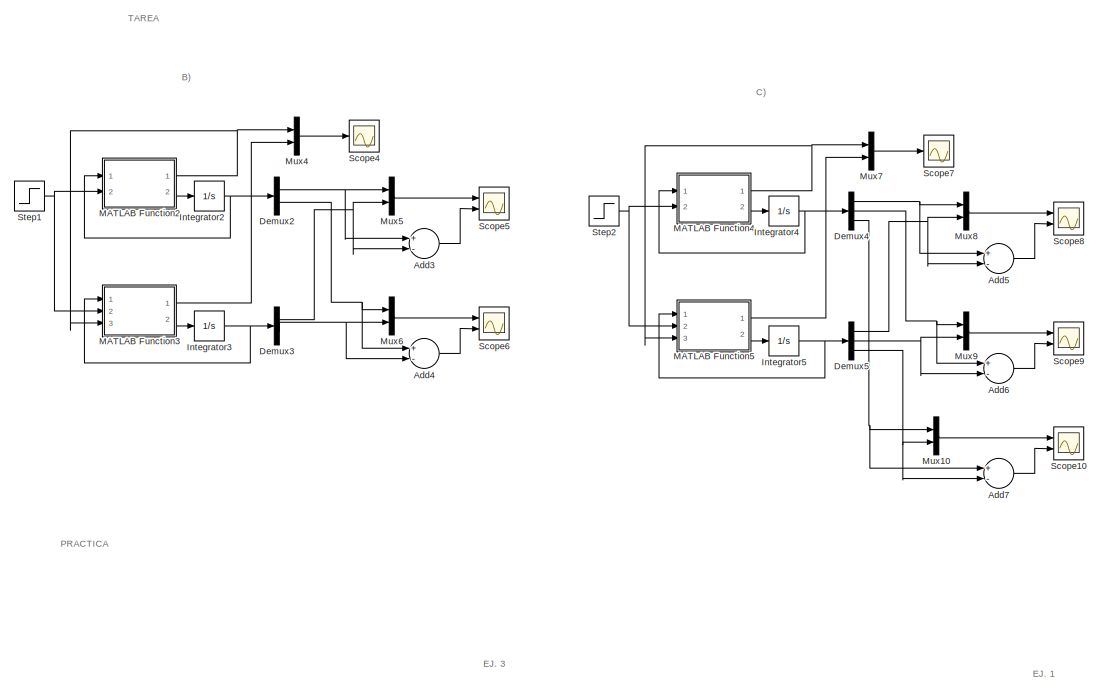
[diagram: root canvas - part 1/4, top center region]
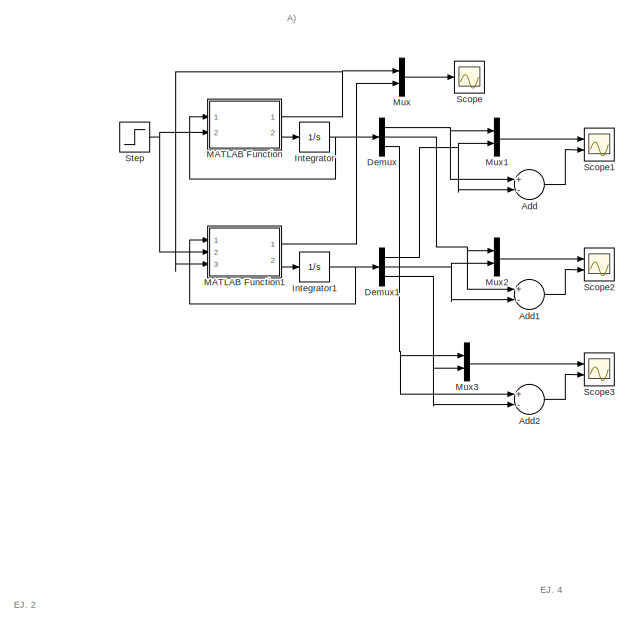
[diagram: root canvas - part 2/4, top left region]
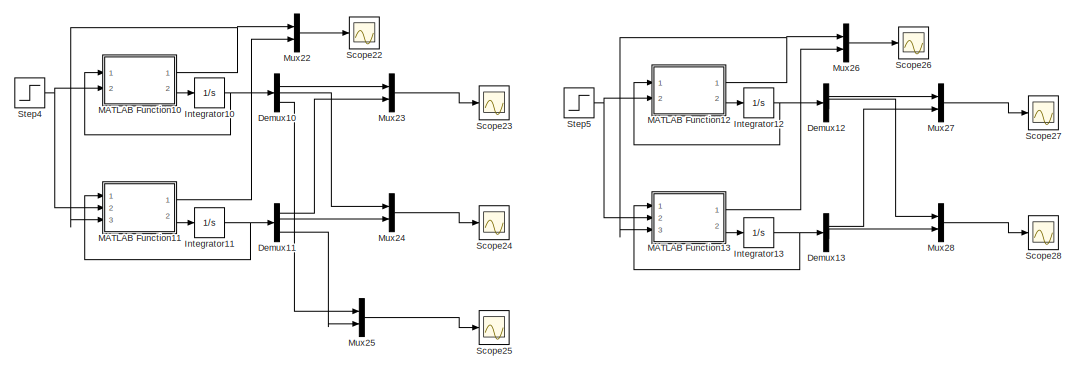
[diagram: root canvas - part 3/4, bottom right region]
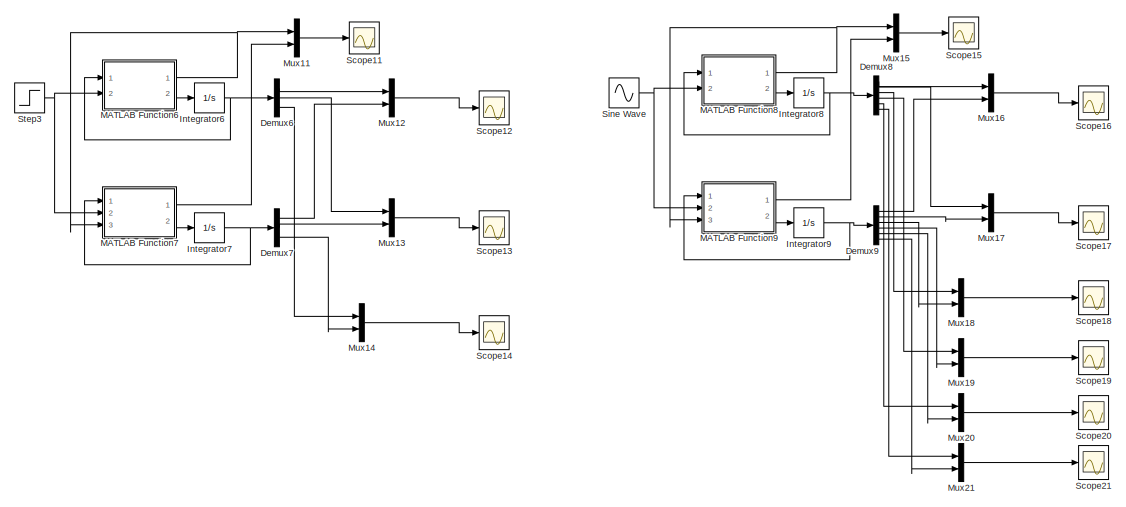
[diagram: root canvas - part 4/4, bottom left region]
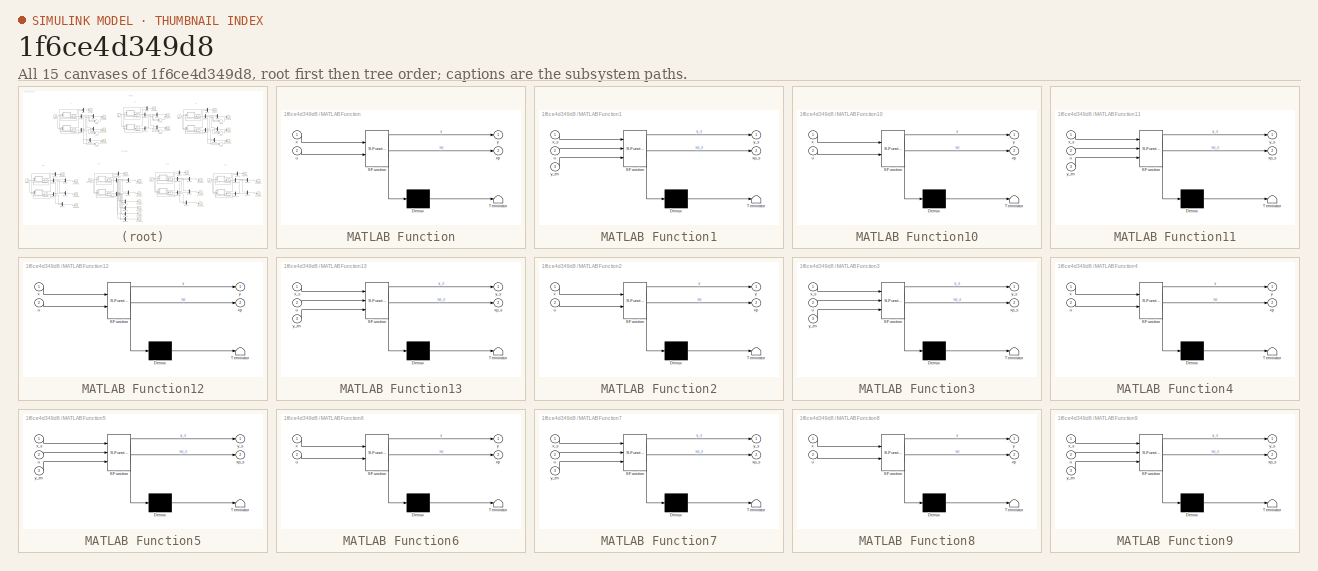
[diagram: thumbnail index - all 15 canvases of the model, root first then tree order]
MODEL slx_1f6ce4d349d8
KIND model
CONFIG AbsTol = auto
CONFIG FixedStep = auto
CONFIG MaxStep = auto
CONFIG MinStep = auto
CONFIG RelTol = 1e-3
CONFIG SampleTimeConstraint = Unconstrained
CONFIG Solver = ode45
CONFIG SolverMode = Auto
CONFIG SolverName = ode45
CONFIG StartTime = 0.0
CONFIG StopTime = 3
BLOCK [Sum] Add
  InputSameDT = off
  Inputs = +-
  OutDataTypeStr = Inherit: Inherit via internal rule
  Ports = [2, 1]
  SaturateOnIntegerOverflow = off
BLOCK [Sum] Add1
  InputSameDT = off
  Inputs = +-
  OutDataTypeStr = Inherit: Inherit via internal rule
  Ports = [2, 1]
  SaturateOnIntegerOverflow = off
BLOCK [Sum] Add2
  InputSameDT = off
  Inputs = +-
  OutDataTypeStr = Inherit: Inherit via internal rule
  Ports = [2, 1]
  SaturateOnIntegerOverflow = off
BLOCK [Sum] Add3
  InputSameDT = off
  Inputs = +-
  OutDataTypeStr = Inherit: Inherit via internal rule
  Ports = [2, 1]
  SaturateOnIntegerOverflow = off
BLOCK [Sum] Add4
  InputSameDT = off
  Inputs = +-
  OutDataTypeStr = Inherit: Inherit via internal rule
  Ports = [2, 1]
  SaturateOnIntegerOverflow = off
BLOCK [Sum] Add5
  InputSameDT = off
  Inputs = +-
  OutDataTypeStr = Inherit: Inherit via internal rule
  Ports = [2, 1]
  SaturateOnIntegerOverflow = off
BLOCK [Sum] Add6
  InputSameDT = off
  Inputs = +-
  OutDataTypeStr = Inherit: Inherit via internal rule
  Ports = [2, 1]
  SaturateOnIntegerOverflow = off
BLOCK [Sum] Add7
  InputSameDT = off
  Inputs = +-
  OutDataTypeStr = Inherit: Inherit via internal rule
  Ports = [2, 1]
  SaturateOnIntegerOverflow = off
BLOCK [Demux] Demux
  DisplayOption = bar
  Outputs = 3
  Ports = [1, 3]
BLOCK [Demux] Demux1
  DisplayOption = bar
  Outputs = 3
  Ports = [1, 3]
BLOCK [Demux] Demux10
  DisplayOption = bar
  Outputs = 3
  Ports = [1, 3]
BLOCK [Demux] Demux11
  DisplayOption = bar
  Outputs = 3
  Ports = [1, 3]
BLOCK [Demux] Demux12
  DisplayOption = bar
  Outputs = 2
  Ports = [1, 2]
BLOCK [Demux] Demux13
  DisplayOption = bar
  Outputs = 2
  Ports = [1, 2]
BLOCK [Demux] Demux2
  DisplayOption = bar
  Outputs = 2
  Ports = [1, 2]
BLOCK [Demux] Demux3
  DisplayOption = bar
  Outputs = 2
  Ports = [1, 2]
BLOCK [Demux] Demux4
  DisplayOption = bar
  Outputs = 3
  Ports = [1, 3]
BLOCK [Demux] Demux5
  DisplayOption = bar
  Outputs = 3
  Ports = [1, 3]
BLOCK [Demux] Demux6
  DisplayOption = bar
  Outputs = 3
  Ports = [1, 3]
BLOCK [Demux] Demux7
  DisplayOption = bar
  Outputs = 3
  Ports = [1, 3]
BLOCK [Demux] Demux8
  DisplayOption = bar
  Outputs = 6
  Ports = [1, 6]
BLOCK [Demux] Demux9
  DisplayOption = bar
  Outputs = 6
  Ports = [1, 6]
BLOCK [Integrator] Integrator
  InitialCondition = [3 2 5]
  Ports = [1, 1]
BLOCK [Integrator] Integrator1
  InitialCondition = [0 0 0]
  Ports = [1, 1]
BLOCK [Integrator] Integrator10
  InitialCondition = [3 2 5]
  Ports = [1, 1]
BLOCK [Integrator] Integrator11
  InitialCondition = [0 0 0]
  Ports = [1, 1]
BLOCK [Integrator] Integrator12
  InitialCondition = [3 5]
  Ports = [1, 1]
BLOCK [Integrator] Integrator13
  InitialCondition = [0 0]
  Ports = [1, 1]
BLOCK [Integrator] Integrator2
  InitialCondition = [4 5]
  Ports = [1, 1]
BLOCK [Integrator] Integrator3
  InitialCondition = [0 0]
  Ports = [1, 1]
BLOCK [Integrator] Integrator4
  InitialCondition = [10 6 20]
  Ports = [1, 1]
BLOCK [Integrator] Integrator5
  InitialCondition = [0 0 0]
  Ports = [1, 1]
BLOCK [Integrator] Integrator6
  InitialCondition = [3 2 5]
  Ports = [1, 1]
BLOCK [Integrator] Integrator7
  InitialCondition = [0 0 0]
  Ports = [1, 1]
BLOCK [Integrator] Integrator8
  InitialCondition = [3 2 5 1 2 3]
  Ports = [1, 1]
BLOCK [Integrator] Integrator9
  InitialCondition = [0 0 0 0 0 0]
  Ports = [1, 1]
BLOCK [SubSystem] MATLAB Function
  ErrorFcn = Stateflow.Translate.translate
  PermitHierarchicalResolution = ExplicitOnly
  Ports = [2, 2]
  RequestExecContextInheritance = off
  SFBlockType = MATLAB Function
  TreatAsAtomicUnit = on
BLOCK [Demux] MATLAB Function/ Demux 
  Outputs = 1
  Ports = [1, 1]
BLOCK [S-Function] MATLAB Function/ SFunction 
  EnableBusSupport = on
  FunctionName = sf_sfun
  PortCounts = [2 3]
  Ports = [2, 3]
  Tag = Stateflow S-Function simulacion 2
BLOCK [Terminator] MATLAB Function/ Terminator 
BLOCK [Inport] MATLAB Function/u
  IconDisplay = Port number
  Port = 2
BLOCK [Inport] MATLAB Function/x
  IconDisplay = Port number
BLOCK [Outport] MATLAB Function/xp
  IconDisplay = Port number
  Port = 2
BLOCK [Outport] MATLAB Function/y
  IconDisplay = Port number
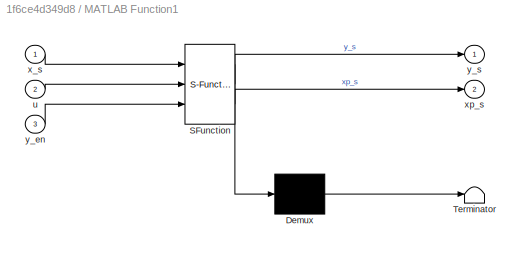
BLOCK [SubSystem] MATLAB Function1
  ErrorFcn = Stateflow.Translate.translate
  PermitHierarchicalResolution = ExplicitOnly
  Ports = [3, 2]
  RequestExecContextInheritance = off
  SFBlockType = MATLAB Function
  TreatAsAtomicUnit = on
BLOCK [Demux] MATLAB Function1/ Demux 
  Outputs = 1
  Ports = [1, 1]
BLOCK [S-Function] MATLAB Function1/ SFunction 
  EnableBusSupport = on
  FunctionName = sf_sfun
  PortCounts = [3 3]
  Ports = [3, 3]
  Tag = Stateflow S-Function simulacion 1
BLOCK [Terminator] MATLAB Function1/ Terminator 
BLOCK [Inport] MATLAB Function1/u
  IconDisplay = Port number
  Port = 2
BLOCK [Inport] MATLAB Function1/x_s
  IconDisplay = Port number
BLOCK [Outport] MATLAB Function1/xp_s
  IconDisplay = Port number
  Port = 2
BLOCK [Inport] MATLAB Function1/y_en
  IconDisplay = Port number
  Port = 3
BLOCK [Outport] MATLAB Function1/y_s
  IconDisplay = Port number
BLOCK [SubSystem] MATLAB Function10
  ErrorFcn = Stateflow.Translate.translate
  PermitHierarchicalResolution = ExplicitOnly
  Ports = [2, 2]
  RequestExecContextInheritance = off
  SFBlockType = MATLAB Function
  TreatAsAtomicUnit = on
BLOCK [Demux] MATLAB Function10/ Demux 
  Outputs = 1
  Ports = [1, 1]
BLOCK [S-Function] MATLAB Function10/ SFunction 
  EnableBusSupport = on
  FunctionName = sf_sfun
  PortCounts = [2 3]
  Ports = [2, 3]
  Tag = Stateflow S-Function simulacion 11
BLOCK [Terminator] MATLAB Function10/ Terminator 
BLOCK [Inport] MATLAB Function10/u
  IconDisplay = Port number
  Port = 2
BLOCK [Inport] MATLAB Function10/x
  IconDisplay = Port number
BLOCK [Outport] MATLAB Function10/xp
  IconDisplay = Port number
  Port = 2
BLOCK [Outport] MATLAB Function10/y
  IconDisplay = Port number
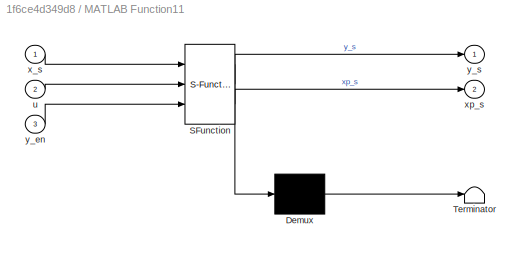
BLOCK [SubSystem] MATLAB Function11
  ErrorFcn = Stateflow.Translate.translate
  PermitHierarchicalResolution = ExplicitOnly
  Ports = [3, 2]
  RequestExecContextInheritance = off
  SFBlockType = MATLAB Function
  TreatAsAtomicUnit = on
BLOCK [Demux] MATLAB Function11/ Demux 
  Outputs = 1
  Ports = [1, 1]
BLOCK [S-Function] MATLAB Function11/ SFunction 
  EnableBusSupport = on
  FunctionName = sf_sfun
  PortCounts = [3 3]
  Ports = [3, 3]
  Tag = Stateflow S-Function simulacion 12
BLOCK [Terminator] MATLAB Function11/ Terminator 
BLOCK [Inport] MATLAB Function11/u
  IconDisplay = Port number
  Port = 2
BLOCK [Inport] MATLAB Function11/x_s
  IconDisplay = Port number
BLOCK [Outport] MATLAB Function11/xp_s
  IconDisplay = Port number
  Port = 2
BLOCK [Inport] MATLAB Function11/y_en
  IconDisplay = Port number
  Port = 3
BLOCK [Outport] MATLAB Function11/y_s
  IconDisplay = Port number
BLOCK [SubSystem] MATLAB Function12
  ErrorFcn = Stateflow.Translate.translate
  PermitHierarchicalResolution = ExplicitOnly
  Ports = [2, 2]
  RequestExecContextInheritance = off
  SFBlockType = MATLAB Function
  TreatAsAtomicUnit = on
BLOCK [Demux] MATLAB Function12/ Demux 
  Outputs = 1
  Ports = [1, 1]
BLOCK [S-Function] MATLAB Function12/ SFunction 
  EnableBusSupport = on
  FunctionName = sf_sfun
  PortCounts = [2 3]
  Ports = [2, 3]
  Tag = Stateflow S-Function simulacion 13
BLOCK [Terminator] MATLAB Function12/ Terminator 
BLOCK [Inport] MATLAB Function12/u
  IconDisplay = Port number
  Port = 2
BLOCK [Inport] MATLAB Function12/x
  IconDisplay = Port number
BLOCK [Outport] MATLAB Function12/xp
  IconDisplay = Port number
  Port = 2
BLOCK [Outport] MATLAB Function12/y
  IconDisplay = Port number
BLOCK [SubSystem] MATLAB Function13
  ErrorFcn = Stateflow.Translate.translate
  PermitHierarchicalResolution = ExplicitOnly
  Ports = [3, 2]
  RequestExecContextInheritance = off
  SFBlockType = MATLAB Function
  TreatAsAtomicUnit = on
BLOCK [Demux] MATLAB Function13/ Demux 
  Outputs = 1
  Ports = [1, 1]
BLOCK [S-Function] MATLAB Function13/ SFunction 
  EnableBusSupport = on
  FunctionName = sf_sfun
  PortCounts = [3 3]
  Ports = [3, 3]
  Tag = Stateflow S-Function simulacion 14
BLOCK [Terminator] MATLAB Function13/ Terminator 
BLOCK [Inport] MATLAB Function13/u
  IconDisplay = Port number
  Port = 2
BLOCK [Inport] MATLAB Function13/x_s
  IconDisplay = Port number
BLOCK [Outport] MATLAB Function13/xp_s
  IconDisplay = Port number
  Port = 2
BLOCK [Inport] MATLAB Function13/y_en
  IconDisplay = Port number
  Port = 3
BLOCK [Outport] MATLAB Function13/y_s
  IconDisplay = Port number
BLOCK [SubSystem] MATLAB Function2
  ErrorFcn = Stateflow.Translate.translate
  PermitHierarchicalResolution = ExplicitOnly
  Ports = [2, 2]
  RequestExecContextInheritance = off
  SFBlockType = MATLAB Function
  TreatAsAtomicUnit = on
BLOCK [Demux] MATLAB Function2/ Demux 
  Outputs = 1
  Ports = [1, 1]
BLOCK [S-Function] MATLAB Function2/ SFunction 
  EnableBusSupport = on
  FunctionName = sf_sfun
  PortCounts = [2 3]
  Ports = [2, 3]
  Tag = Stateflow S-Function simulacion 3
BLOCK [Terminator] MATLAB Function2/ Terminator 
BLOCK [Inport] MATLAB Function2/u
  IconDisplay = Port number
  Port = 2
BLOCK [Inport] MATLAB Function2/x
  IconDisplay = Port number
BLOCK [Outport] MATLAB Function2/xp
  IconDisplay = Port number
  Port = 2
BLOCK [Outport] MATLAB Function2/y
  IconDisplay = Port number
BLOCK [SubSystem] MATLAB Function3
  ErrorFcn = Stateflow.Translate.translate
  PermitHierarchicalResolution = ExplicitOnly
  Ports = [3, 2]
  RequestExecContextInheritance = off
  SFBlockType = MATLAB Function
  TreatAsAtomicUnit = on
BLOCK [Demux] MATLAB Function3/ Demux 
  Outputs = 1
  Ports = [1, 1]
BLOCK [S-Function] MATLAB Function3/ SFunction 
  EnableBusSupport = on
  FunctionName = sf_sfun
  PortCounts = [3 3]
  Ports = [3, 3]
  Tag = Stateflow S-Function simulacion 4
BLOCK [Terminator] MATLAB Function3/ Terminator 
BLOCK [Inport] MATLAB Function3/u
  IconDisplay = Port number
  Port = 2
BLOCK [Inport] MATLAB Function3/x_s
  IconDisplay = Port number
BLOCK [Outport] MATLAB Function3/xp_s
  IconDisplay = Port number
  Port = 2
BLOCK [Inport] MATLAB Function3/y_en
  IconDisplay = Port number
  Port = 3
BLOCK [Outport] MATLAB Function3/y_s
  IconDisplay = Port number
BLOCK [SubSystem] MATLAB Function4
  ErrorFcn = Stateflow.Translate.translate
  PermitHierarchicalResolution = ExplicitOnly
  Ports = [2, 2]
  RequestExecContextInheritance = off
  SFBlockType = MATLAB Function
  TreatAsAtomicUnit = on
BLOCK [Demux] MATLAB Function4/ Demux 
  Outputs = 1
  Ports = [1, 1]
BLOCK [S-Function] MATLAB Function4/ SFunction 
  EnableBusSupport = on
  FunctionName = sf_sfun
  PortCounts = [2 3]
  Ports = [2, 3]
  Tag = Stateflow S-Function simulacion 5
BLOCK [Terminator] MATLAB Function4/ Terminator 
BLOCK [Inport] MATLAB Function4/u
  IconDisplay = Port number
  Port = 2
BLOCK [Inport] MATLAB Function4/x
  IconDisplay = Port number
BLOCK [Outport] MATLAB Function4/xp
  IconDisplay = Port number
  Port = 2
BLOCK [Outport] MATLAB Function4/y
  IconDisplay = Port number
BLOCK [SubSystem] MATLAB Function5
  ErrorFcn = Stateflow.Translate.translate
  PermitHierarchicalResolution = ExplicitOnly
  Ports = [3, 2]
  RequestExecContextInheritance = off
  SFBlockType = MATLAB Function
  TreatAsAtomicUnit = on
BLOCK [Demux] MATLAB Function5/ Demux 
  Outputs = 1
  Ports = [1, 1]
BLOCK [S-Function] MATLAB Function5/ SFunction 
  EnableBusSupport = on
  FunctionName = sf_sfun
  PortCounts = [3 3]
  Ports = [3, 3]
  Tag = Stateflow S-Function simulacion 6
BLOCK [Terminator] MATLAB Function5/ Terminator 
BLOCK [Inport] MATLAB Function5/u
  IconDisplay = Port number
  Port = 2
BLOCK [Inport] MATLAB Function5/x_s
  IconDisplay = Port number
BLOCK [Outport] MATLAB Function5/xp_s
  IconDisplay = Port number
  Port = 2
BLOCK [Inport] MATLAB Function5/y_en
  IconDisplay = Port number
  Port = 3
BLOCK [Outport] MATLAB Function5/y_s
  IconDisplay = Port number
BLOCK [SubSystem] MATLAB Function6
  ErrorFcn = Stateflow.Translate.translate
  PermitHierarchicalResolution = ExplicitOnly
  Ports = [2, 2]
  RequestExecContextInheritance = off
  SFBlockType = MATLAB Function
  TreatAsAtomicUnit = on
BLOCK [Demux] MATLAB Function6/ Demux 
  Outputs = 1
  Ports = [1, 1]
BLOCK [S-Function] MATLAB Function6/ SFunction 
  EnableBusSupport = on
  FunctionName = sf_sfun
  PortCounts = [2 3]
  Ports = [2, 3]
  Tag = Stateflow S-Function simulacion 7
BLOCK [Terminator] MATLAB Function6/ Terminator 
BLOCK [Inport] MATLAB Function6/u
  IconDisplay = Port number
  Port = 2
BLOCK [Inport] MATLAB Function6/x
  IconDisplay = Port number
BLOCK [Outport] MATLAB Function6/xp
  IconDisplay = Port number
  Port = 2
BLOCK [Outport] MATLAB Function6/y
  IconDisplay = Port number
BLOCK [SubSystem] MATLAB Function7
  ErrorFcn = Stateflow.Translate.translate
  PermitHierarchicalResolution = ExplicitOnly
  Ports = [3, 2]
  RequestExecContextInheritance = off
  SFBlockType = MATLAB Function
  TreatAsAtomicUnit = on
BLOCK [Demux] MATLAB Function7/ Demux 
  Outputs = 1
  Ports = [1, 1]
BLOCK [S-Function] MATLAB Function7/ SFunction 
  EnableBusSupport = on
  FunctionName = sf_sfun
  PortCounts = [3 3]
  Ports = [3, 3]
  Tag = Stateflow S-Function simulacion 8
BLOCK [Terminator] MATLAB Function7/ Terminator 
BLOCK [Inport] MATLAB Function7/u
  IconDisplay = Port number
  Port = 2
BLOCK [Inport] MATLAB Function7/x_s
  IconDisplay = Port number
BLOCK [Outport] MATLAB Function7/xp_s
  IconDisplay = Port number
  Port = 2
BLOCK [Inport] MATLAB Function7/y_en
  IconDisplay = Port number
  Port = 3
BLOCK [Outport] MATLAB Function7/y_s
  IconDisplay = Port number
BLOCK [SubSystem] MATLAB Function8
  ErrorFcn = Stateflow.Translate.translate
  PermitHierarchicalResolution = ExplicitOnly
  Ports = [2, 2]
  RequestExecContextInheritance = off
  SFBlockType = MATLAB Function
  TreatAsAtomicUnit = on
BLOCK [Demux] MATLAB Function8/ Demux 
  Outputs = 1
  Ports = [1, 1]
BLOCK [S-Function] MATLAB Function8/ SFunction 
  EnableBusSupport = on
  FunctionName = sf_sfun
  PortCounts = [2 3]
  Ports = [2, 3]
  Tag = Stateflow S-Function simulacion 9
BLOCK [Terminator] MATLAB Function8/ Terminator 
BLOCK [Inport] MATLAB Function8/u
  IconDisplay = Port number
  Port = 2
BLOCK [Inport] MATLAB Function8/x
  IconDisplay = Port number
BLOCK [Outport] MATLAB Function8/xp
  IconDisplay = Port number
  Port = 2
BLOCK [Outport] MATLAB Function8/y
  IconDisplay = Port number
BLOCK [SubSystem] MATLAB Function9
  ErrorFcn = Stateflow.Translate.translate
  PermitHierarchicalResolution = ExplicitOnly
  Ports = [3, 2]
  RequestExecContextInheritance = off
  SFBlockType = MATLAB Function
  TreatAsAtomicUnit = on
BLOCK [Demux] MATLAB Function9/ Demux 
  Outputs = 1
  Ports = [1, 1]
BLOCK [S-Function] MATLAB Function9/ SFunction 
  EnableBusSupport = on
  FunctionName = sf_sfun
  PortCounts = [3 3]
  Ports = [3, 3]
  Tag = Stateflow S-Function simulacion 10
BLOCK [Terminator] MATLAB Function9/ Terminator 
BLOCK [Inport] MATLAB Function9/u
  IconDisplay = Port number
  Port = 2
BLOCK [Inport] MATLAB Function9/x_s
  IconDisplay = Port number
BLOCK [Outport] MATLAB Function9/xp_s
  IconDisplay = Port number
  Port = 2
BLOCK [Inport] MATLAB Function9/y_en
  IconDisplay = Port number
  Port = 3
BLOCK [Outport] MATLAB Function9/y_s
  IconDisplay = Port number
BLOCK [Mux] Mux
  DisplayOption = bar
  Inputs = 2
  Ports = [2, 1]
BLOCK [Mux] Mux1
  DisplayOption = bar
  Inputs = 2
  Ports = [2, 1]
BLOCK [Mux] Mux10
  DisplayOption = bar
  Inputs = 2
  Ports = [2, 1]
BLOCK [Mux] Mux11
  DisplayOption = bar
  Inputs = 2
  Ports = [2, 1]
BLOCK [Mux] Mux12
  DisplayOption = bar
  Inputs = 2
  Ports = [2, 1]
BLOCK [Mux] Mux13
  DisplayOption = bar
  Inputs = 2
  Ports = [2, 1]
BLOCK [Mux] Mux14
  DisplayOption = bar
  Inputs = 2
  Ports = [2, 1]
BLOCK [Mux] Mux15
  DisplayOption = bar
  Inputs = 2
  Ports = [2, 1]
BLOCK [Mux] Mux16
  DisplayOption = bar
  Inputs = 2
  Ports = [2, 1]
BLOCK [Mux] Mux17
  DisplayOption = bar
  Inputs = 2
  Ports = [2, 1]
BLOCK [Mux] Mux18
  DisplayOption = bar
  Inputs = 2
  Ports = [2, 1]
BLOCK [Mux] Mux19
  DisplayOption = bar
  Inputs = 2
  Ports = [2, 1]
BLOCK [Mux] Mux2
  DisplayOption = bar
  Inputs = 2
  Ports = [2, 1]
BLOCK [Mux] Mux20
  DisplayOption = bar
  Inputs = 2
  Ports = [2, 1]
BLOCK [Mux] Mux21
  DisplayOption = bar
  Inputs = 2
  Ports = [2, 1]
BLOCK [Mux] Mux22
  DisplayOption = bar
  Inputs = 2
  Ports = [2, 1]
BLOCK [Mux] Mux23
  DisplayOption = bar
  Inputs = 2
  Ports = [2, 1]
BLOCK [Mux] Mux24
  DisplayOption = bar
  Inputs = 2
  Ports = [2, 1]
BLOCK [Mux] Mux25
  DisplayOption = bar
  Inputs = 2
  Ports = [2, 1]
BLOCK [Mux] Mux26
  DisplayOption = bar
  Inputs = 2
  Ports = [2, 1]
BLOCK [Mux] Mux27
  DisplayOption = bar
  Inputs = 2
  Ports = [2, 1]
BLOCK [Mux] Mux28
  DisplayOption = bar
  Inputs = 2
  Ports = [2, 1]
BLOCK [Mux] Mux3
  DisplayOption = bar
  Inputs = 2
  Ports = [2, 1]
BLOCK [Mux] Mux4
  DisplayOption = bar
  Inputs = 2
  Ports = [2, 1]
BLOCK [Mux] Mux5
  DisplayOption = bar
  Inputs = 2
  Ports = [2, 1]
BLOCK [Mux] Mux6
  DisplayOption = bar
  Inputs = 2
  Ports = [2, 1]
BLOCK [Mux] Mux7
  DisplayOption = bar
  Inputs = 2
  Ports = [2, 1]
BLOCK [Mux] Mux8
  DisplayOption = bar
  Inputs = 2
  Ports = [2, 1]
BLOCK [Mux] Mux9
  DisplayOption = bar
  Inputs = 2
  Ports = [2, 1]
BLOCK [Scope] Scope
  Floating = off
  LimitDataPoints = off
  NumInputPorts = 1
  Ports = [1]
BLOCK [Scope] Scope1
  Floating = off
  LimitDataPoints = off
  NumInputPorts = 2
  Ports = [2]
  SaveName = ScopeData1
  YMax = 5~5
  YMin = -5~-5
BLOCK [Scope] Scope10
  Floating = off
  LimitDataPoints = off
  NumInputPorts = 2
  Ports = [2]
  SaveName = ScopeData7
  YMax = 5~5
  YMin = -5~-5
BLOCK [Scope] Scope11
  Floating = off
  LimitDataPoints = off
  NumInputPorts = 1
  Ports = [1]
  SaveName = ScopeData11
BLOCK [Scope] Scope12
  Floating = off
  LimitDataPoints = off
  NumInputPorts = 1
  Ports = [1]
  SaveName = ScopeData12
  ZoomMode = xonly
BLOCK [Scope] Scope13
  Floating = off
  LimitDataPoints = off
  NumInputPorts = 1
  Ports = [1]
  SaveName = ScopeData13
BLOCK [Scope] Scope14
  Floating = off
  LimitDataPoints = off
  NumInputPorts = 1
  Ports = [1]
  SaveName = ScopeData14
BLOCK [Scope] Scope15
  Floating = off
  LimitDataPoints = off
  NumInputPorts = 1
  Ports = [1]
  SaveName = ScopeData15
BLOCK [Scope] Scope16
  Floating = off
  LimitDataPoints = off
  NumInputPorts = 1
  Ports = [1]
  SaveName = ScopeData16
BLOCK [Scope] Scope17
  Floating = off
  LimitDataPoints = off
  NumInputPorts = 1
  Ports = [1]
  SaveName = ScopeData17
  YMax = 5e+06
  YMin = -500000
  ZoomMode = yonly
BLOCK [Scope] Scope18
  Floating = off
  LimitDataPoints = off
  NumInputPorts = 1
  Ports = [1]
  SaveName = ScopeData18
  YMax = 5000
  YMin = -5000
BLOCK [Scope] Scope19
  Floating = off
  LimitDataPoints = off
  NumInputPorts = 1
  Ports = [1]
  SaveName = ScopeData19
  YMax = 5000
  YMin = -5000
BLOCK [Scope] Scope2
  Floating = off
  LimitDataPoints = off
  NumInputPorts = 2
  Ports = [2]
  SaveName = ScopeData2
  YMax = 5~5
  YMin = -5~-5
BLOCK [Scope] Scope20
  Floating = off
  LimitDataPoints = off
  NumInputPorts = 1
  Ports = [1]
  SaveName = ScopeData20
  YMax = 5000
  YMin = -5000
BLOCK [Scope] Scope21
  Floating = off
  LimitDataPoints = off
  NumInputPorts = 1
  Ports = [1]
  SaveName = ScopeData21
  YMax = 5000
  YMin = -5000
BLOCK [Scope] Scope22
  Floating = off
  LimitDataPoints = off
  NumInputPorts = 1
  Ports = [1]
  SaveName = ScopeData22
BLOCK [Scope] Scope23
  Floating = off
  LimitDataPoints = off
  NumInputPorts = 1
  Ports = [1]
  SaveName = ScopeData23
  ZoomMode = xonly
BLOCK [Scope] Scope24
  Floating = off
  LimitDataPoints = off
  NumInputPorts = 1
  Ports = [1]
  SaveName = ScopeData24
BLOCK [Scope] Scope25
  Floating = off
  LimitDataPoints = off
  NumInputPorts = 1
  Ports = [1]
  SaveName = ScopeData25
BLOCK [Scope] Scope26
  Floating = off
  LimitDataPoints = off
  NumInputPorts = 1
  Ports = [1]
  SaveName = ScopeData26
BLOCK [Scope] Scope27
  Floating = off
  LimitDataPoints = off
  NumInputPorts = 1
  Ports = [1]
  SaveName = ScopeData27
BLOCK [Scope] Scope28
  Floating = off
  LimitDataPoints = off
  NumInputPorts = 1
  Ports = [1]
  SaveName = ScopeData28
BLOCK [Scope] Scope3
  Floating = off
  LimitDataPoints = off
  NumInputPorts = 2
  Ports = [2]
  SaveName = ScopeData3
  YMax = 5~5
  YMin = -5~-5
BLOCK [Scope] Scope4
  Floating = off
  LimitDataPoints = off
  NumInputPorts = 1
  Ports = [1]
  SaveName = ScopeData4
BLOCK [Scope] Scope5
  Floating = off
  LimitDataPoints = off
  NumInputPorts = 2
  Ports = [2]
  SaveName = ScopeData5
  YMax = 5~5
  YMin = -5~-5
  ZoomMode = yonly
BLOCK [Scope] Scope6
  Floating = off
  LimitDataPoints = off
  NumInputPorts = 2
  Ports = [2]
  SaveName = ScopeData6
  YMax = 5~5
  YMin = -5~-5
  ZoomMode = yonly
BLOCK [Scope] Scope7
  Floating = off
  LimitDataPoints = off
  NumInputPorts = 1
  Ports = [1]
  SaveName = ScopeData8
BLOCK [Scope] Scope8
  Floating = off
  LimitDataPoints = off
  NumInputPorts = 2
  Ports = [2]
  SaveName = ScopeData9
  YMax = 5~5
  YMin = -5~-5
BLOCK [Scope] Scope9
  Floating = off
  LimitDataPoints = off
  NumInputPorts = 2
  Ports = [2]
  SaveName = ScopeData10
  YMax = 5~5
  YMin = -5~-5
BLOCK [Sin] Sine Wave
  Amplitude = 5
  Ports = [0, 1]
  SampleTime = 0
BLOCK [Step] Step
  SampleTime = 0
BLOCK [Step] Step1
  SampleTime = 0
BLOCK [Step] Step2
  SampleTime = 0
BLOCK [Step] Step3
  After = 10
  SampleTime = 0
BLOCK [Step] Step4
  After = 10
  SampleTime = 0
BLOCK [Step] Step5
  After = 10
  SampleTime = 0
ANNOTATION (root): A)
ANNOTATION (root): B)
ANNOTATION (root): C)
ANNOTATION (root): EJ. 1
ANNOTATION (root): EJ. 2
ANNOTATION (root): EJ. 3
ANNOTATION (root): EJ. 4
ANNOTATION (root): PRACTICA
ANNOTATION (root): TAREA
LINE Add1:1 -> Scope2:2
LINE Add2:1 -> Scope3:2
LINE Add3:1 -> Scope5:2
LINE Add4:1 -> Scope6:2
LINE Add5:1 -> Scope8:2
LINE Add6:1 -> Scope9:2
LINE Add7:1 -> Scope10:2
LINE Add:1 -> Scope1:2
LINE Demux10:1 -> Mux23:1
LINE Demux10:2 -> Mux24:1
LINE Demux10:3 -> Mux25:1
LINE Demux11:1 -> Mux23:2
LINE Demux11:2 -> Mux24:2
LINE Demux11:3 -> Mux25:2
LINE Demux12:1 -> Mux27:1
LINE Demux12:2 -> Mux28:1
LINE Demux13:1 -> Mux27:2
LINE Demux13:2 -> Mux28:2
NET Demux1:1 -> Add:2, Mux1:2
NET Demux1:2 -> Add1:2, Mux2:2
NET Demux1:3 -> Add2:2, Mux3:2
NET Demux2:1 -> Add3:1, Mux5:1
NET Demux2:2 -> Add4:1, Mux6:1
NET Demux3:1 -> Add3:2, Mux5:2
NET Demux3:2 -> Add4:2, Mux6:2
NET Demux4:1 -> Add5:1, Mux8:1
NET Demux4:2 -> Add6:1, Mux9:1
NET Demux4:3 -> Add7:1, Mux10:1
NET Demux5:1 -> Add5:2, Mux8:2
NET Demux5:2 -> Add6:2, Mux9:2
NET Demux5:3 -> Add7:2, Mux10:2
LINE Demux6:1 -> Mux12:1
LINE Demux6:2 -> Mux13:1
LINE Demux6:3 -> Mux14:1
LINE Demux7:1 -> Mux12:2
LINE Demux7:2 -> Mux13:2
LINE Demux7:3 -> Mux14:2
LINE Demux8:1 -> Mux16:1
LINE Demux8:2 -> Mux17:1
LINE Demux8:3 -> Mux18:1
LINE Demux8:4 -> Mux19:1
LINE Demux8:5 -> Mux20:1
LINE Demux8:6 -> Mux21:1
LINE Demux9:1 -> Mux16:2
LINE Demux9:2 -> Mux17:2
LINE Demux9:3 -> Mux18:2
LINE Demux9:4 -> Mux19:2
LINE Demux9:5 -> Mux20:2
LINE Demux9:6 -> Mux21:2
NET Demux:1 -> Add:1, Mux1:1
NET Demux:2 -> Add1:1, Mux2:1
NET Demux:3 -> Add2:1, Mux3:1
NET Integrator10:1 -> Demux10:1, MATLAB Function10:1
NET Integrator11:1 -> Demux11:1, MATLAB Function11:1
NET Integrator12:1 -> Demux12:1, MATLAB Function12:1
NET Integrator13:1 -> Demux13:1, MATLAB Function13:1
NET Integrator1:1 -> Demux1:1, MATLAB Function1:1
NET Integrator2:1 -> Demux2:1, MATLAB Function2:1
NET Integrator3:1 -> Demux3:1, MATLAB Function3:1
NET Integrator4:1 -> Demux4:1, MATLAB Function4:1
NET Integrator5:1 -> Demux5:1, MATLAB Function5:1
NET Integrator6:1 -> Demux6:1, MATLAB Function6:1
NET Integrator7:1 -> Demux7:1, MATLAB Function7:1
NET Integrator8:1 -> Demux8:1, MATLAB Function8:1
NET Integrator9:1 -> Demux9:1, MATLAB Function9:1
NET Integrator:1 -> Demux:1, MATLAB Function:1
NET MATLAB Function10:1 -> MATLAB Function11:3, Mux22:1
LINE MATLAB Function10:2 -> Integrator10:1
LINE MATLAB Function11:1 -> Mux22:2
LINE MATLAB Function11:2 -> Integrator11:1
NET MATLAB Function12:1 -> MATLAB Function13:3, Mux26:1
LINE MATLAB Function12:2 -> Integrator12:1
LINE MATLAB Function13:1 -> Mux26:2
LINE MATLAB Function13:2 -> Integrator13:1
LINE MATLAB Function1:1 -> Mux:2
LINE MATLAB Function1:2 -> Integrator1:1
NET MATLAB Function2:1 -> MATLAB Function3:3, Mux4:1
LINE MATLAB Function2:2 -> Integrator2:1
LINE MATLAB Function3:1 -> Mux4:2
LINE MATLAB Function3:2 -> Integrator3:1
NET MATLAB Function4:1 -> MATLAB Function5:3, Mux7:1
LINE MATLAB Function4:2 -> Integrator4:1
LINE MATLAB Function5:1 -> Mux7:2
LINE MATLAB Function5:2 -> Integrator5:1
NET MATLAB Function6:1 -> MATLAB Function7:3, Mux11:1
LINE MATLAB Function6:2 -> Integrator6:1
LINE MATLAB Function7:1 -> Mux11:2
LINE MATLAB Function7:2 -> Integrator7:1
NET MATLAB Function8:1 -> MATLAB Function9:3, Mux15:1
LINE MATLAB Function8:2 -> Integrator8:1
LINE MATLAB Function9:1 -> Mux15:2
LINE MATLAB Function9:2 -> Integrator9:1
NET MATLAB Function:1 -> MATLAB Function1:3, Mux:1
LINE MATLAB Function:2 -> Integrator:1
LINE Mux10:1 -> Scope10:1
LINE Mux11:1 -> Scope11:1
LINE Mux12:1 -> Scope12:1
LINE Mux13:1 -> Scope13:1
LINE Mux14:1 -> Scope14:1
LINE Mux15:1 -> Scope15:1
LINE Mux16:1 -> Scope16:1
LINE Mux17:1 -> Scope17:1
LINE Mux18:1 -> Scope18:1
LINE Mux19:1 -> Scope19:1
LINE Mux1:1 -> Scope1:1
LINE Mux20:1 -> Scope20:1
LINE Mux21:1 -> Scope21:1
LINE Mux22:1 -> Scope22:1
LINE Mux23:1 -> Scope23:1
LINE Mux24:1 -> Scope24:1
LINE Mux25:1 -> Scope25:1
LINE Mux26:1 -> Scope26:1
LINE Mux27:1 -> Scope27:1
LINE Mux28:1 -> Scope28:1
LINE Mux2:1 -> Scope2:1
LINE Mux3:1 -> Scope3:1
LINE Mux4:1 -> Scope4:1
LINE Mux5:1 -> Scope5:1
LINE Mux6:1 -> Scope6:1
LINE Mux7:1 -> Scope7:1
LINE Mux8:1 -> Scope8:1
LINE Mux9:1 -> Scope9:1
LINE Mux:1 -> Scope:1
NET Sine Wave:1 -> MATLAB Function8:2, MATLAB Function9:2
NET Step1:1 -> MATLAB Function2:2, MATLAB Function3:2
NET Step2:1 -> MATLAB Function4:2, MATLAB Function5:2
NET Step3:1 -> MATLAB Function6:2, MATLAB Function7:2
NET Step4:1 -> MATLAB Function10:2, MATLAB Function11:2
NET Step5:1 -> MATLAB Function12:2, MATLAB Function13:2
NET Step:1 -> MATLAB Function1:2, MATLAB Function:2
note: NET lines group one-source signal fan-out (src -> all destinations, sorted); 1:1 wires keep LINE
CHART MATLAB Function1 states=1 transitions=1
  STATE_LABEL 'eML_blk_kernel()'
  STATE_LABEL "SCRIPT:\nfunction [y_s,xp_s] = fcn(x_s,u,y_en)\n%#codegen\nL=[4 29 10]';\nA=[-1 1 -2;0 -1 1;0 0 -1];\nB=[1 0 1]';\nC=[1 0 0];\nxp_s = A*x_s + B*u + L*(y_en-C*x_s);\ny_s = C*x_s;"
CHART MATLAB Function states=1 transitions=1
  STATE_LABEL 'eML_blk_kernel()'
  STATE_LABEL "SCRIPT:\nfunction [y,xp] = fcn(x,u)\n%#codegen\nA=[-1 1 -2;0 -1 1;0 0 -1];\nB=[1 0 1]';\nC=[1 0 0];\nxp=A*x+B*u;\ny = C*x;"
CHART MATLAB Function2 states=1 transitions=1
  STATE_LABEL 'eML_blk_kernel()'
  STATE_LABEL "SCRIPT:\nfunction [y,xp] = fcn(x,u)\n%#codegen\nA=[-1 1;1 2];\nB=[1 1]';\nC=[1 0];\nxp=A*x+B*u;\ny = C*x;"
CHART MATLAB Function3 states=1 transitions=1
  STATE_LABEL 'eML_blk_kernel()'
  STATE_LABEL "SCRIPT:\nfunction [y_s,xp_s] = fcn(x_s,u,y_en)\n%#codegen\nL=[11 50]';\nA=[-1 1;1 2];\nB=[1 1]';\nC=[1 0];\nxp_s = A*x_s + B*u + L*(y_en-C*x_s);\ny_s = C*x_s;"
CHART MATLAB Function4 states=1 transitions=1
  STATE_LABEL 'eML_blk_kernel()'
  STATE_LABEL "SCRIPT:\nfunction [y,xp] = fcn(x,u)\n%#codegen\nA=[0 1 0;0 0 1;-5 -6 0];\nB=[0 0 1]';\nC=[1 0 0];\nxp=A*x+B*u;\ny = C*x;"
CHART MATLAB Function5 states=1 transitions=1
  STATE_LABEL 'eML_blk_kernel()'
  STATE_LABEL "SCRIPT:\nfunction [y_s,xp_s] = fcn(x_s,u,y_en)\n%#codegen\nL=[35 394 1285]';\nA=[0 1 0;0 0 1;-5 -6 0];\nB=[0 0 1]';\nC=[1 0 0];\nxp_s = A*x_s + B*u + L*(y_en-C*x_s);\ny_s = C*x_s;"
CHART MATLAB Function6 states=1 transitions=1
  STATE_LABEL 'eML_blk_kernel()'
  STATE_LABEL "SCRIPT:\nfunction [y,xp] = fcn(x,u)\n%#codegen\nA=[0 4 0;-3 0 2;0 0 -2];\nB=[0 0 2]';\nC=[1 0 0];\nxp=A*x+B*u;\ny = C*x;"
CHART MATLAB Function7 states=1 transitions=1
  STATE_LABEL 'eML_blk_kernel()'
  STATE_LABEL "SCRIPT:\nfunction [y_s,xp_s] = fcn(x_s,u,y_en)\n%#codegen\nL=[30 70 87]';\nA=[0 4 0;-3 0 2;0 0 -2];\nB=[0 0 2]';\nC=[1 0 0];\nxp_s = A*x_s + B*u + L*(y_en-C*x_s);\ny_s = C*x_s;"
CHART MATLAB Function8 states=1 transitions=1
  STATE_LABEL 'eML_blk_kernel()'
  STATE_LABEL "SCRIPT:\nfunction [y,xp] = fcn(x,u)\n%#codegen\nA=[0 1 0 0 0 0;16 0 -8 0 0 0;0 0 0 1 0 0;-16 0 16 0 0 0;0 0 0 0 0 1;0 0 0 0 0 0];\nB=[0 -1 0 0 0 1]';\nC=[1 0 1 0 1 0];\nxp=A*x+B*u;\ny = C*x;"
CHART MATLAB Function9 states=1 transitions=1
  STATE_LABEL 'eML_blk_kernel()'
  STATE_LABEL "SCRIPT:\nfunction [y_s,xp_s] = fcn(x_s,u,y_en)\n%#codegen\nL=[-77.3438;-384.3125;90;501.5;2.3438;.8125];\nA=[0 1 0 0 0 0;16 0 -8 0 0 0;0 0 0 1 0 0;-16 0 16 0 0 0;0 0 0 0 0 1;0 0 0 0 0 0];\nB=[0 -1 0 0 0 1]';\nC=[1 0 1 0 1 0];\nxp_s = A*x_s + B*u + L*(y_en-C*x_s);\ny_s = C*x_s;"
CHART MATLAB Function10 states=1 transitions=1
  STATE_LABEL 'eML_blk_kernel()'
  STATE_LABEL "SCRIPT:\nfunction [y,xp] = fcn(x,u)\n%#codegen\nA=[0 1 0;0 0 1;-6 -11 -6];\nB=[0 0 1]';\nC=[1 0 0];\nxp=A*x+B*u;\ny = C*x;"
CHART MATLAB Function11 states=1 transitions=1
  STATE_LABEL 'eML_blk_kernel()'
  STATE_LABEL "SCRIPT:\nfunction [y_s,xp_s] = fcn(x_s,u,y_en)\n%#codegen\nL=[3 7 -1]';\nA=[0 1 0;0 0 1;-6 -11 -6];\nB=[0 0 1]';\nC=[1 0 0];\nxp_s = A*x_s + B*u + L*(y_en-C*x_s);\ny_s = C*x_s;"
CHART MATLAB Function12 states=1 transitions=1
  STATE_LABEL 'eML_blk_kernel()'
  STATE_LABEL "SCRIPT:\nfunction [y,xp] = fcn(x,u)\n%#codegen\nA=[0 1;2 3];\nB=[1 1]';\nC=[1 2];\nxp=A*x+B*u;\ny = C*x;"
CHART MATLAB Function13 states=1 transitions=1
  STATE_LABEL 'eML_blk_kernel()'
  STATE_LABEL "SCRIPT:\nfunction [y_s,xp_s] = fcn(x_s,u,y_en)\n%#codegen\nL=[2 2]';\nA=[0 1;2 3];\nB=[1 1]';\nC=[1 2];\nxp_s = A*x_s + B*u + L*(y_en-C*x_s);\ny_s = C*x_s;"
